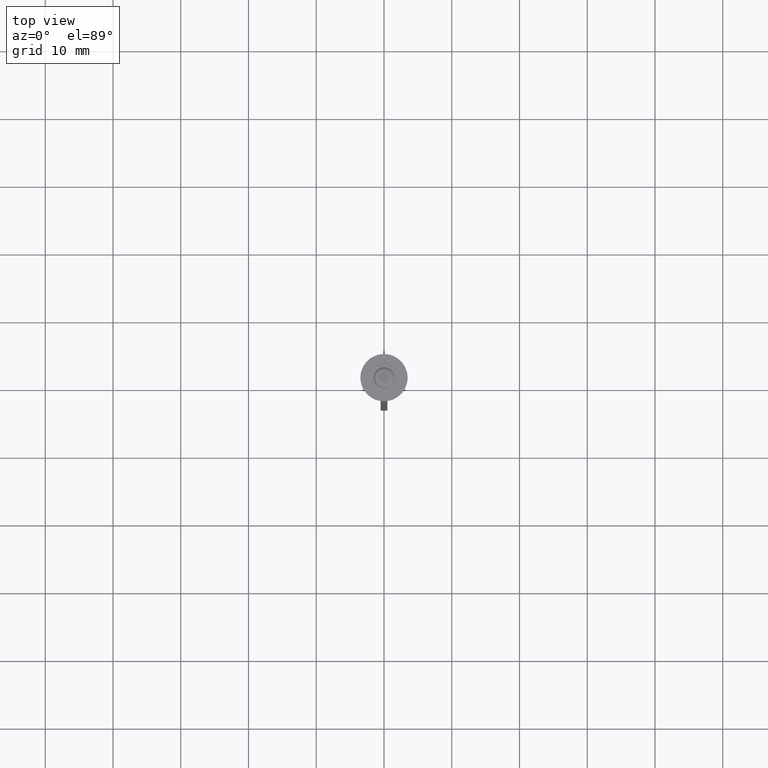
[diagram: clean part render]
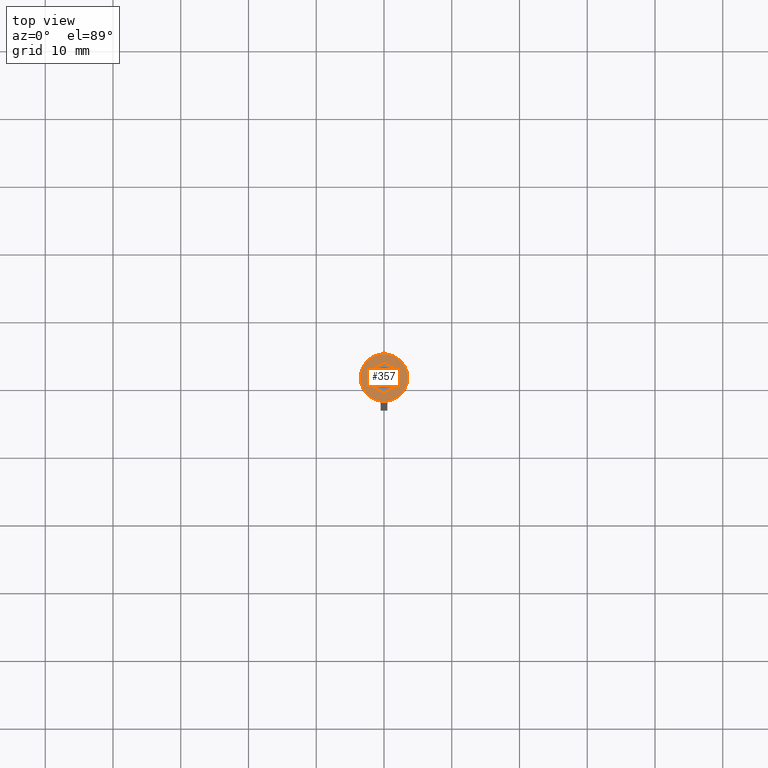
[diagram: same view with one face highlighted and labeled with its STEP entity id]
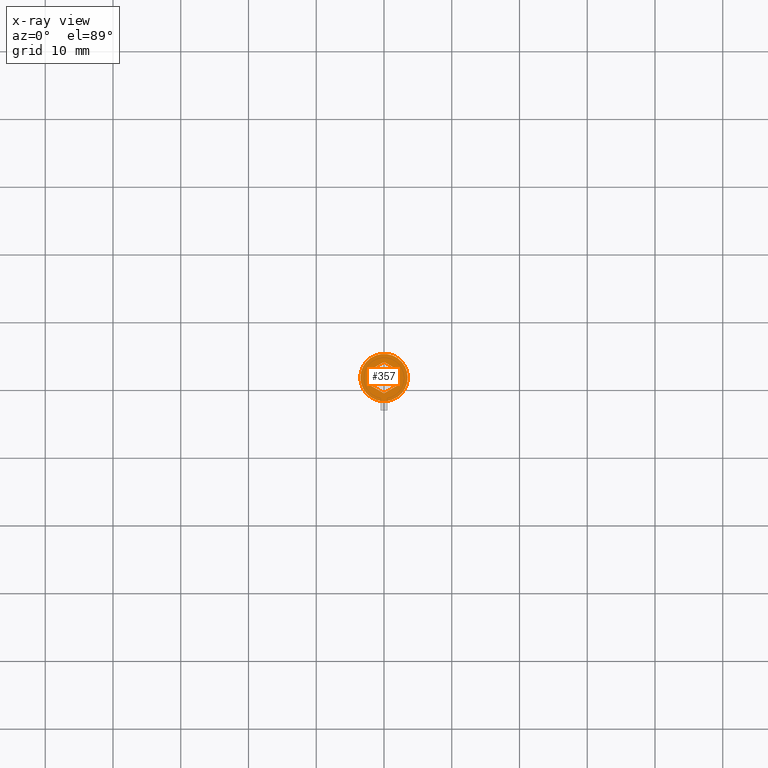
[diagram: x-ray of the same camera — body ghosted, the highlighted face saturated]
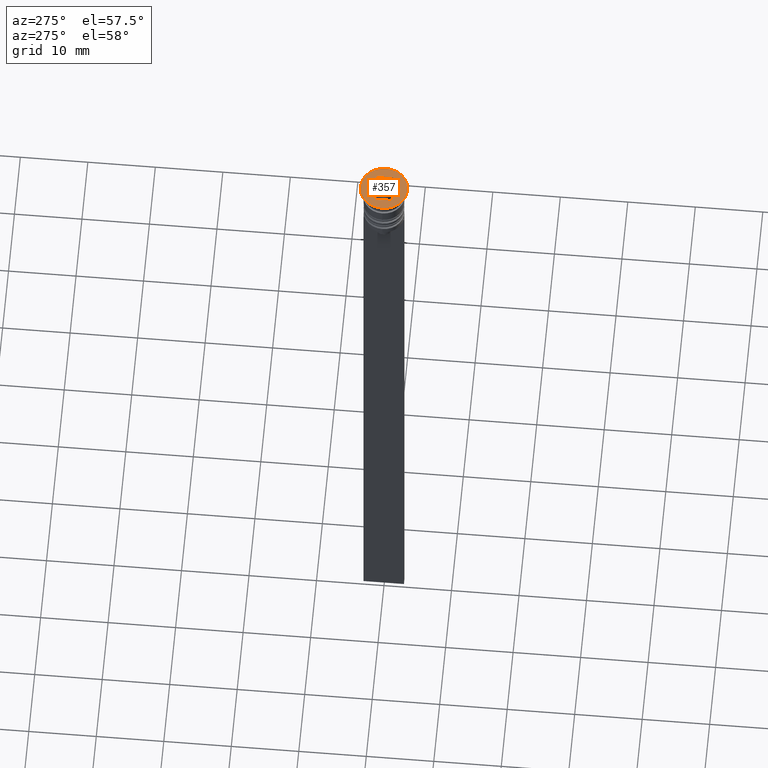
[diagram: same view with one face highlighted and labeled with its STEP entity id]
A machine part, top view. The second image highlights one B-rep face of the part: STEP entity #357.
The next image is the same camera in x-ray: the body ghosted, the highlighted face saturated — about 0% of this face is hidden behind the body in this view.
A second angle (auxiliary view) of the same face is appended — the face is thin or edge-on in the first view.
In plain terms, the highlighted planar face has unit normal (0, -0, 1).
Its self-contained STEP definition (entity closure, byte-faithful):
#107 = DIRECTION ( 'NONE',  ( -0.8660254037844387076, 0.4999999999999998890, 0.000000000000000000 ) ) ;
#117 = VERTEX_POINT ( 'NONE', #333 ) ;
#147 = CARTESIAN_POINT ( 'NONE',  ( 2.000000000000000000, -1.154700538379251684, 0.000000000000000000 ) ) ;
#226 = LINE ( 'NONE', #2064, #2121 ) ;
#235 = DIRECTION ( 'NONE',  ( 1.000000000000000000, 0.000000000000000000, 0.000000000000000000 ) ) ;
#244 = VECTOR ( 'NONE', #1030, 1000.000000000000227 ) ;
#293 = EDGE_CURVE ( 'NONE', #358, #438, #759, .T. ) ;
#306 = LINE ( 'NONE', #2117, #244 ) ;
#328 = EDGE_CURVE ( 'NONE', #963, #1605, #226, .T. ) ;
#333 = CARTESIAN_POINT ( 'NONE',  ( 2.000000000000000000, -1.154700538379251684, 0.000000000000000000 ) ) ;
#357 = ADVANCED_FACE ( 'NONE', ( #452, #2202 ), #1647, .T. ) ;
#358 = VERTEX_POINT ( 'NONE', #1154 ) ;
#414 = CARTESIAN_POINT ( 'NONE',  ( 3.500000000000000000, 0.000000000000000000, 0.000000000000000000 ) ) ;
#438 = VERTEX_POINT ( 'NONE', #1749 ) ;
#444 = DIRECTION ( 'NONE',  ( -0.000000000000000000, -0.000000000000000000, 1.000000000000000000 ) ) ;
#452 = FACE_BOUND ( 'NONE', #764, .T. ) ;
#553 = CIRCLE ( 'NONE', #1884, 3.500000000000000000 ) ;
#595 = CARTESIAN_POINT ( 'NONE',  ( 0.000000000000000000, 0.000000000000000000, 0.000000000000000000 ) ) ;
#656 = EDGE_CURVE ( 'NONE', #438, #963, #745, .T. ) ;
#663 = LINE ( 'NONE', #147, #1881 ) ;
#691 = VECTOR ( 'NONE', #1848, 1000.000000000000000 ) ;
#694 = CARTESIAN_POINT ( 'NONE',  ( 3.997386383800531884E-16, -2.309401076758503368, 0.000000000000000000 ) ) ;
#697 = VERTEX_POINT ( 'NONE', #1459 ) ;
#740 = ORIENTED_EDGE ( 'NONE', *, *, #882, .F. ) ;
#744 = ORIENTED_EDGE ( 'NONE', *, *, #656, .F. ) ;
#745 = LINE ( 'NONE', #1125, #691 ) ;
#758 = ORIENTED_EDGE ( 'NONE', *, *, #328, .F. ) ;
#759 = LINE ( 'NONE', #1683, #2084 ) ;
#764 = EDGE_LOOP ( 'NONE', ( #740, #2212, #1573, #758, #744, #2317 ) ) ;
#802 = EDGE_CURVE ( 'NONE', #117, #1526, #663, .T. ) ;
#882 = EDGE_CURVE ( 'NONE', #1526, #358, #1349, .T. ) ;
#963 = VERTEX_POINT ( 'NONE', #1466 ) ;
#968 = DIRECTION ( 'NONE',  ( -0.8660254037844387076, -0.4999999999999999445, 0.000000000000000000 ) ) ;
#1021 = DIRECTION ( 'NONE',  ( 0.000000000000000000, 1.000000000000000000, 0.000000000000000000 ) ) ;
#1030 = DIRECTION ( 'NONE',  ( 0.8660254037844384856, 0.5000000000000001110, 0.000000000000000000 ) ) ;
#1067 = EDGE_CURVE ( 'NONE', #1605, #117, #306, .T. ) ;
#1102 = CARTESIAN_POINT ( 'NONE',  ( 0.000000000000000000, 0.000000000000000000, 0.000000000000000000 ) ) ;
#1104 = DIRECTION ( 'NONE',  ( 1.000000000000000000, 0.000000000000000000, 0.000000000000000000 ) ) ;
#1125 = CARTESIAN_POINT ( 'NONE',  ( -2.000000000000000000, 1.154700538379251018, 0.000000000000000000 ) ) ;
#1145 = DIRECTION ( 'NONE',  ( 1.000000000000000000, 0.000000000000000000, 0.000000000000000000 ) ) ;
#1154 = CARTESIAN_POINT ( 'NONE',  ( -2.168404344971008868E-16, 2.309401076758502480, 0.000000000000000000 ) ) ;
#1250 = VERTEX_POINT ( 'NONE', #414 ) ;
#1267 = EDGE_CURVE ( 'NONE', #697, #1250, #553, .T. ) ;
#1349 = LINE ( 'NONE', #1709, #1654 ) ;
#1407 = AXIS2_PLACEMENT_3D ( 'NONE', #1102, #1670, #235 ) ;
#1424 = EDGE_LOOP ( 'NONE', ( #1856, #2306 ) ) ;
#1459 = CARTESIAN_POINT ( 'NONE',  ( -3.500000000000000000, 4.286263797015736595E-16, 0.000000000000000000 ) ) ;
#1466 = CARTESIAN_POINT ( 'NONE',  ( -2.000000000000000000, -1.154700538379252128, 0.000000000000000000 ) ) ;
#1478 = DIRECTION ( 'NONE',  ( 0.8660254037844387076, -0.4999999999999997780, 0.000000000000000000 ) ) ;
#1491 = CARTESIAN_POINT ( 'NONE',  ( 2.000000000000000000, 1.154700538379251240, 0.000000000000000000 ) ) ;
#1526 = VERTEX_POINT ( 'NONE', #1491 ) ;
#1573 = ORIENTED_EDGE ( 'NONE', *, *, #1067, .F. ) ;
#1605 = VERTEX_POINT ( 'NONE', #694 ) ;
#1647 = PLANE ( 'NONE',  #1965 ) ;
#1654 = VECTOR ( 'NONE', #107, 1000.000000000000000 ) ;
#1670 = DIRECTION ( 'NONE',  ( -0.000000000000000000, -0.000000000000000000, 1.000000000000000000 ) ) ;
#1683 = CARTESIAN_POINT ( 'NONE',  ( 0.000000000000000000, 2.309401076758502480, 0.000000000000000000 ) ) ;
#1709 = CARTESIAN_POINT ( 'NONE',  ( 2.000000000000000000, 1.154700538379251240, 0.000000000000000000 ) ) ;
#1749 = CARTESIAN_POINT ( 'NONE',  ( -2.000000000000000000, 1.154700538379251018, 0.000000000000000000 ) ) ;
#1848 = DIRECTION ( 'NONE',  ( 0.000000000000000000, -1.000000000000000000, 0.000000000000000000 ) ) ;
#1852 = DIRECTION ( 'NONE',  ( 0.000000000000000000, -0.000000000000000000, 1.000000000000000000 ) ) ;
#1856 = ORIENTED_EDGE ( 'NONE', *, *, #2136, .T. ) ;
#1881 = VECTOR ( 'NONE', #1021, 1000.000000000000000 ) ;
#1884 = AXIS2_PLACEMENT_3D ( 'NONE', #2054, #444, #1145 ) ;
#1965 = AXIS2_PLACEMENT_3D ( 'NONE', #595, #1852, #1104 ) ;
#2054 = CARTESIAN_POINT ( 'NONE',  ( 0.000000000000000000, 0.000000000000000000, 0.000000000000000000 ) ) ;
#2064 = CARTESIAN_POINT ( 'NONE',  ( -2.000000000000000000, -1.154700538379252128, 0.000000000000000000 ) ) ;
#2084 = VECTOR ( 'NONE', #968, 1000.000000000000000 ) ;
#2096 = CIRCLE ( 'NONE', #1407, 3.500000000000000000 ) ;
#2117 = CARTESIAN_POINT ( 'NONE',  ( 3.997386383800531884E-16, -2.309401076758503368, 0.000000000000000000 ) ) ;
#2121 = VECTOR ( 'NONE', #1478, 1000.000000000000114 ) ;
#2136 = EDGE_CURVE ( 'NONE', #1250, #697, #2096, .T. ) ;
#2202 = FACE_OUTER_BOUND ( 'NONE', #1424, .T. ) ;
#2212 = ORIENTED_EDGE ( 'NONE', *, *, #802, .F. ) ;
#2306 = ORIENTED_EDGE ( 'NONE', *, *, #1267, .T. ) ;
#2317 = ORIENTED_EDGE ( 'NONE', *, *, #293, .F. ) ;